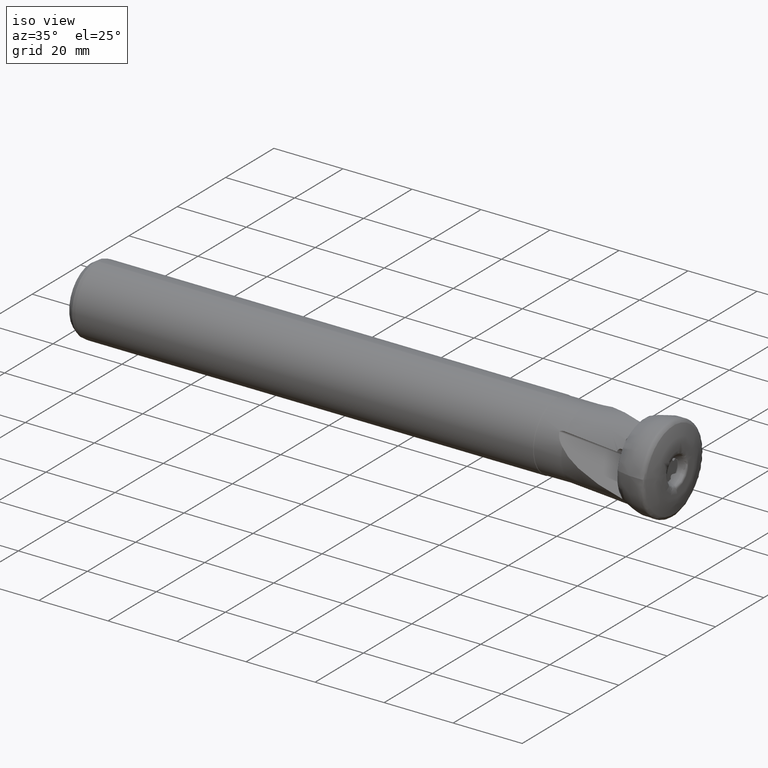
[diagram: clean part render]
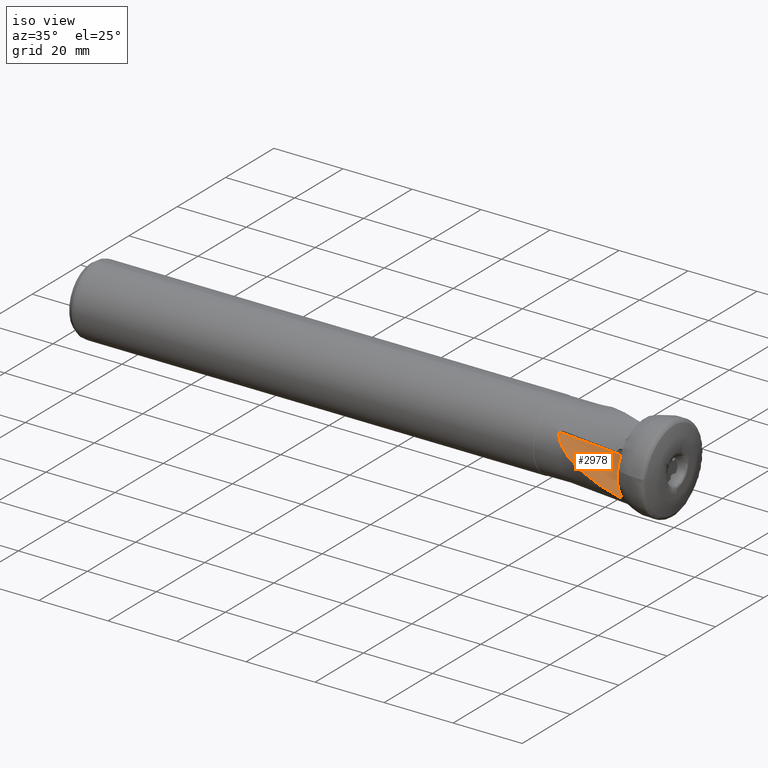
[diagram: same view with one face highlighted and labeled with its STEP entity id]
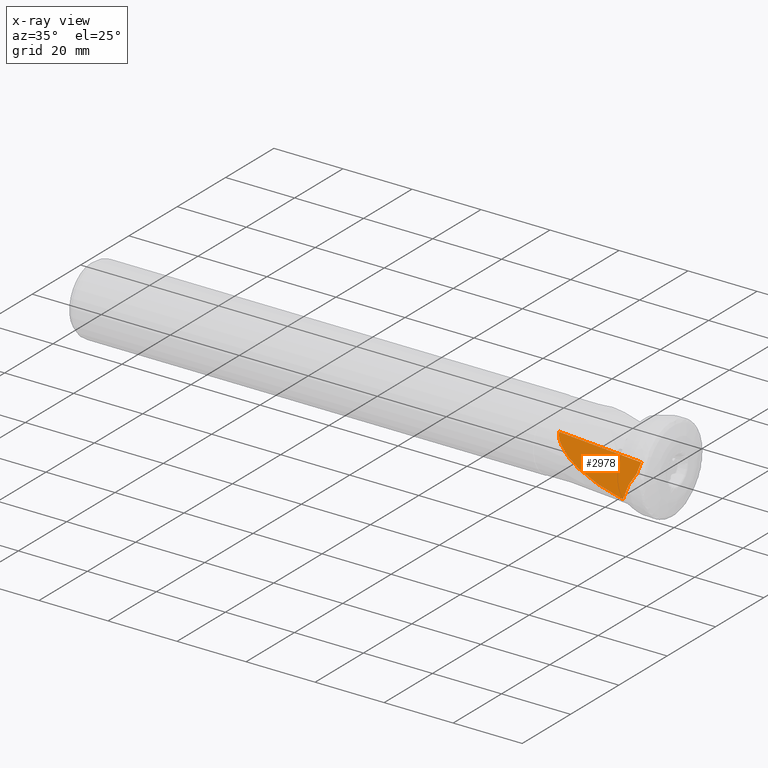
[diagram: x-ray of the same camera — body ghosted, the highlighted face saturated]
A machine part, iso view. The second image highlights one B-rep face of the part: STEP entity #2978.
The next image is the same camera in x-ray: the body ghosted, the highlighted face saturated — about 0% of this face is hidden behind the body in this view.
In plain terms, the highlighted planar face has unit normal (-0.3701, 0.7201, -0.5869).
Its self-contained STEP definition (entity closure, byte-faithful):
#28 = CARTESIAN_POINT ( 'NONE',  ( -8.788657455661745400, -8.520035253433734500, -6.700686252063720300 ) ) ;
#32 = CARTESIAN_POINT ( 'NONE',  ( -8.012170204761533300, -2.147613187119846900, 0.6288431122888051800 ) ) ;
#40 = CARTESIAN_POINT ( 'NONE',  ( -8.810079171552104100, -6.629818352496011300, -4.367807030535459500 ) ) ;
#47 = VECTOR ( 'NONE', #1943, 1000.000000000000100 ) ;
#48 = CARTESIAN_POINT ( 'NONE',  ( -22.92936467704580400, -10.63931338463860300, -0.3834771040417172000 ) ) ;
#79 = CARTESIAN_POINT ( 'NONE',  ( -8.104953019190452000, -4.289831012749751900, -1.941229533105130400 ) ) ;
#142 = VERTEX_POINT ( 'NONE', #2656 ) ;
#287 = CARTESIAN_POINT ( 'NONE',  ( -27.41783301019367900, -8.722487658318975400, 4.799134832800167900 ) ) ;
#306 = CARTESIAN_POINT ( 'NONE',  ( -27.61564122826638400, -8.121818086232055500, 5.660924922144244100 ) ) ;
#316 = CARTESIAN_POINT ( 'NONE',  ( -8.767690799446759400, -8.557665397101052600, -6.760082245619139800 ) ) ;
#337 = CARTESIAN_POINT ( 'NONE',  ( -8.809339651944775100, -8.437371806674857300, -6.586212028949013600 ) ) ;
#541 =( BOUNDED_CURVE ( )  B_SPLINE_CURVE ( 3, ( #1169, #287, #1200, #3328 ),
 .UNSPECIFIED., .F., .T. ) 
 B_SPLINE_CURVE_WITH_KNOTS ( ( 4, 4 ),
 ( 3.216684054430979200, 3.533673707329590700 ),
 .UNSPECIFIED. ) 
 CURVE ( )  GEOMETRIC_REPRESENTATION_ITEM ( )  RATIONAL_B_SPLINE_CURVE ( ( 1.000000000000000000, 0.9916439776872796300, 0.9916439776872796300, 1.000000000000000000 ) ) 
 REPRESENTATION_ITEM ( '' )  );
#553 = EDGE_LOOP ( 'NONE', ( #2738, #3641, #648, #3366, #1195 ) ) ;
#633 = CARTESIAN_POINT ( 'NONE',  ( -8.810303876772225700, -8.369873968476284200, -6.502781471918860100 ) ) ;
#648 = ORIENTED_EDGE ( 'NONE', *, *, #894, .T. ) ;
#715 = DIRECTION ( 'NONE',  ( -0.9289711258367763200, -0.2831061828006622400, 0.2384607653715601600 ) ) ;
#894 = EDGE_CURVE ( 'NONE', #1125, #2985, #2377, .T. ) ;
#935 = CARTESIAN_POINT ( 'NONE',  ( -8.812423175540271100, -8.167114435910486100, -6.252651105351856300 ) ) ;
#941 = CARTESIAN_POINT ( 'NONE',  ( -25.79999999999999700, -9.481726821425414900, 2.847254200780436700 ) ) ;
#975 = CARTESIAN_POINT ( 'NONE',  ( -8.771787044517946400, -6.258930421147862700, -3.936861477402170600 ) ) ;
#1125 = VERTEX_POINT ( 'NONE', #1901 ) ;
#1149 = CARTESIAN_POINT ( 'NONE',  ( -8.740307214642641000, -8.590337176435289400, -6.817440882023453800 ) ) ;
#1169 = CARTESIAN_POINT ( 'NONE',  ( -27.61564122826638400, -8.121818086232055500, 5.660924922144244100 ) ) ;
#1195 = ORIENTED_EDGE ( 'NONE', *, *, #1590, .T. ) ;
#1200 = CARTESIAN_POINT ( 'NONE',  ( -26.80751947391128800, -9.179610297018717400, 3.853341522340141300 ) ) ;
#1245 = CARTESIAN_POINT ( 'NONE',  ( -8.008849885953161200, -1.770152206444470400, 1.089908552238381600 ) ) ;
#1252 = CARTESIAN_POINT ( 'NONE',  ( -8.816561975381061300, -7.716358931241344100, -5.696946431564835000 ) ) ;
#1264 = B_SPLINE_CURVE_WITH_KNOTS ( 'NONE', 3,
 ( #2126, #316, #28, #2147, #337, #2466, #633, #2768, #935, #3076, #1252, #3378, #1550, #3665, #1846, #40, #2159, #975, #3111, #1292, #3411, #1587, #3704, #1884, #79, #2197 ),
 .UNSPECIFIED., .F., .F.,
 ( 4, 2, 2, 2, 2, 2, 2, 2, 2, 2, 2, 2, 4 ),
 ( 0.0001832267616716496400, 0.0003975181238022811700, 0.0005046638048675964300, 0.0006118094859329116900, 0.001040392210194167200, 0.001897557658716677400, 0.002754723107239186000, 0.003183305831500440100, 0.003611888555761694600, 0.004469054004284205000, 0.005326219452806715800, 0.006183384901329226600, 0.007040550349851737400 ),
 .UNSPECIFIED. ) ;
#1281 =( BOUNDED_CURVE ( )  B_SPLINE_CURVE ( 3, ( #941, #48, #3392, #1570 ),
 .UNSPECIFIED., .F., .F. ) 
 B_SPLINE_CURVE_WITH_KNOTS ( ( 4, 4 ),
 ( 3.477441010317362700, 4.344822891366477300 ),
 .UNSPECIFIED. ) 
 CURVE ( )  GEOMETRIC_REPRESENTATION_ITEM ( )  RATIONAL_B_SPLINE_CURVE ( ( 1.000000000000000000, 0.9382806109319690200, 0.9382806109319690200, 1.000000000000000000 ) ) 
 REPRESENTATION_ITEM ( '' )  );
#1292 = CARTESIAN_POINT ( 'NONE',  ( -8.625712963236548300, -5.681278754531308400, -3.320179986364252500 ) ) ;
#1543 = DIRECTION ( 'NONE',  ( -0.3701102517259635100, 0.7201291429122078600, -0.5868836503906653700 ) ) ;
#1550 = CARTESIAN_POINT ( 'NONE',  ( -8.816090986820707800, -7.173780559733807600, -5.031478617489912400 ) ) ;
#1570 = CARTESIAN_POINT ( 'NONE',  ( -8.740307214642641000, -8.590337176435289400, -6.817440882023453800 ) ) ;
#1587 = CARTESIAN_POINT ( 'NONE',  ( -8.399812848807060900, -5.084542449929936800, -2.730422109942987100 ) ) ;
#1590 = EDGE_CURVE ( 'NONE', #1605, #142, #541, .T. ) ;
#1605 = VERTEX_POINT ( 'NONE', #306 ) ;
#1645 = EDGE_CURVE ( 'NONE', #2043, #1125, #1264, .T. ) ;
#1846 = CARTESIAN_POINT ( 'NONE',  ( -8.815982805728879200, -6.812077089928126700, -4.587722567044399300 ) ) ;
#1884 = CARTESIAN_POINT ( 'NONE',  ( -8.176670711428245800, -4.488290821109338000, -2.139519668622974700 ) ) ;
#1901 = CARTESIAN_POINT ( 'NONE',  ( -8.029264572803558800, -4.090937698278266600, -1.744911571172428800 ) ) ;
#1943 = DIRECTION ( 'NONE',  ( 0.005572156574991133700, 0.6334547393370474300, 0.7737596812205563800 ) ) ;
#2043 = VERTEX_POINT ( 'NONE', #1149 ) ;
#2126 = CARTESIAN_POINT ( 'NONE',  ( -8.740307214642641000, -8.590337176435289400, -6.817440882023453800 ) ) ;
#2147 = CARTESIAN_POINT ( 'NONE',  ( -8.808449527315453100, -8.459656059396783300, -6.614117021791812200 ) ) ;
#2159 = CARTESIAN_POINT ( 'NONE',  ( -8.803390139104804400, -6.537790063830929200, -4.259103076839148000 ) ) ;
#2197 = CARTESIAN_POINT ( 'NONE',  ( -8.029264572803558800, -4.090937698278266600, -1.744911571172428800 ) ) ;
#2377 = LINE ( 'NONE', #2878, #47 ) ;
#2405 = FACE_OUTER_BOUND ( 'NONE', #553, .T. ) ;
#2466 = CARTESIAN_POINT ( 'NONE',  ( -8.809997559168634100, -8.392378953526941700, -6.530589141923471200 ) ) ;
#2656 = CARTESIAN_POINT ( 'NONE',  ( -25.79999999999999700, -9.481726821425414900, 2.847254200780436700 ) ) ;
#2736 = VECTOR ( 'NONE', #715, 1000.000000000000100 ) ;
#2738 = ORIENTED_EDGE ( 'NONE', *, *, #3015, .T. ) ;
#2768 = CARTESIAN_POINT ( 'NONE',  ( -8.811722374382968700, -8.257306284729379400, -6.363761974494208200 ) ) ;
#2830 = LINE ( 'NONE', #2861, #2736 ) ;
#2861 = CARTESIAN_POINT ( 'NONE',  ( -27.68627112306955200, -8.143342716388158200, 5.679055150635152300 ) ) ;
#2878 = CARTESIAN_POINT ( 'NONE',  ( -8.008849885953161200, -1.770152206444467900, 1.089908552238381300 ) ) ;
#2978 = ADVANCED_FACE ( 'NONE', ( #2405 ), #3069, .F. ) ;
#2985 = VERTEX_POINT ( 'NONE', #32 ) ;
#3015 = EDGE_CURVE ( 'NONE', #142, #2043, #1281, .T. ) ;
#3069 = PLANE ( 'NONE',  #3650 ) ;
#3076 = CARTESIAN_POINT ( 'NONE',  ( -8.813961775672012800, -7.896366517010105400, -5.919462545174904600 ) ) ;
#3111 = CARTESIAN_POINT ( 'NONE',  ( -8.734426626795063000, -6.069105320114530900, -3.727499513373077700 ) ) ;
#3212 = EDGE_CURVE ( 'NONE', #2985, #1605, #2830, .T. ) ;
#3328 = CARTESIAN_POINT ( 'NONE',  ( -25.79999999999999700, -9.481726821425414900, 2.847254200780436700 ) ) ;
#3366 = ORIENTED_EDGE ( 'NONE', *, *, #3212, .T. ) ;
#3378 = CARTESIAN_POINT ( 'NONE',  ( -8.817057595586250700, -7.354876486096543400, -5.253080807866790100 ) ) ;
#3392 = CARTESIAN_POINT ( 'NONE',  ( -16.86874251824678300, -10.32263852404627100, -3.816954243041101400 ) ) ;
#3411 = CARTESIAN_POINT ( 'NONE',  ( -8.549953870427810200, -5.482194152942405200, -3.123671859885536400 ) ) ;
#3641 = ORIENTED_EDGE ( 'NONE', *, *, #1645, .T. ) ;
#3650 = AXIS2_PLACEMENT_3D ( 'NONE', #1245, #1543, #3658 ) ;
#3658 = DIRECTION ( 'NONE',  ( 0.0000000000000000000, 0.6317452467331955400, 0.7751760724054980200 ) ) ;
#3665 = CARTESIAN_POINT ( 'NONE',  ( -8.815184457876521100, -6.902304423906128000, -4.698938494368290400 ) ) ;
#3704 = CARTESIAN_POINT ( 'NONE',  ( -8.325011592255966900, -4.885745994191530900, -2.533663503162112200 ) ) ;